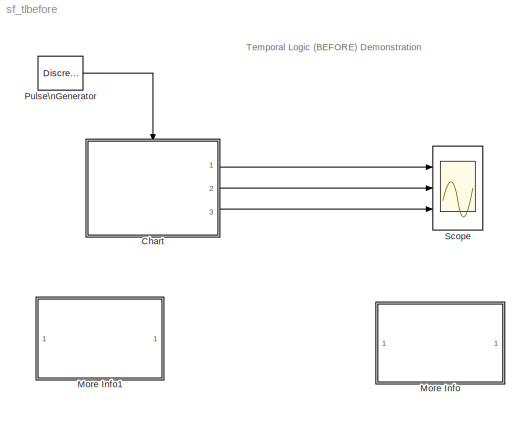
MODEL sf_tlbefore
KIND model
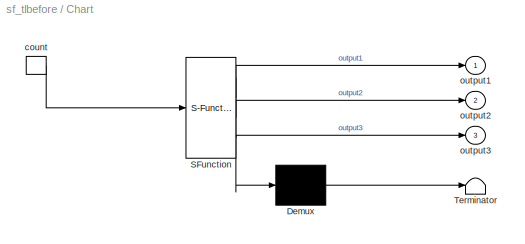
BLOCK [SubSystem] Chart
  MaskDescription = Stateflow diagram
  MaskDisplay = plot(sf('Private','sfblk','xIcon'),sf('Private','sfblk','yIcon'));text(0.5,0,sf('Private', 'sfblk', 'tIcon'),'HorizontalAl','Center','VerticalAl','Bottom');
  MaskIconFrame = off
  MaskIconOpaque = off
  MaskIconRotate = none
  MaskIconUnits = autoscale
  MaskSelfModifiable = on
  MaskType = Stateflow
  MinAlgLoopOccurrences = off
  Ports = [0, 3, 0, 1]
  PropExecContextAcrossSSBoundary = on
  RTWSystemCode = Auto
  TreatAsAtomicUnit = on
BLOCK [Demux] Chart/ Demux 
  Outputs = 1
  Ports = [1, 1]
BLOCK [S-Function] Chart/ SFunction 
  FunctionName = sf_sfun
  PortCounts = [1 4]
  Ports = [1, 4]
  Tag = Stateflow S-Function sf_tlbefore 1
BLOCK [Terminator] Chart/ Terminator 
BLOCK [TriggerPort] Chart/count
  Ports = [0, 1]
  ShowOutputPort = on
BLOCK [Outport] Chart/output1
  IconDisplay = Port number
BLOCK [Outport] Chart/output2
  IconDisplay = Port number
  Port = 2
BLOCK [Outport] Chart/output3
  IconDisplay = Port number
  Port = 3
BLOCK [SubSystem] More Info
  MaskDisplay = disp('Double click\\nhere for\\ninformation on\\nthis demonstration')
  MaskIconFrame = on
  MaskIconOpaque = on
  MaskIconRotate = none
  MaskIconUnits = autoscale
  MinAlgLoopOccurrences = off
  Ports = []
  PropExecContextAcrossSSBoundary = on
  RTWSystemCode = Auto
  TreatAsAtomicUnit = off
BLOCK [SubSystem] More Info1
  MaskDisplay = disp('Double click\\nhere for<path> Help')
  MaskIconFrame = on
  MaskIconOpaque = on
  MaskIconRotate = none
  MaskIconUnits = autoscale
  MinAlgLoopOccurrences = off
  OpenFcn = simcad(bdroot);
  Ports = []
  PropExecContextAcrossSSBoundary = on
  RTWSystemCode = Auto
  TreatAsAtomicUnit = off
BLOCK [DiscretePulseGenerator] Pulse\nGenerator
  Period = 1
  Ports = [0, 1]
  PulseType = Time based
  PulseWidth = 50
BLOCK [Scope] Scope
  DataFormat = StructureWithTime
  NumInputPorts = 3
  Ports = [3]
  TimeRange = 20
  YMax = 1.25~1.25~1
  YMin = 0~0~-1
ANNOTATION (root): Temporal Logic (BEFORE) Demonstration
ANNOTATION More Info: Temporal Logic using the BEFORE function
ANNOTATION More Info: The BEFORE function allows you to execute a transition or an action before a certain number\nof events occur. In this example, we illustrate the use of the BEFORE function for three different\nconditions with three different constraints. \n\nIn superstate One, two conditions need to be met for the transition out of A_state: signal_one has\nto be less than 5 before 10 events occur. Since both these...<+625ch>
LINE Chart/ Demux :1 -> Chart/ Terminator :1
LINE Chart/ SFunction :1 -> Chart/ Demux :1
LINE Chart/ SFunction :2 -> Chart/output1:1
LINE Chart/ SFunction :3 -> Chart/output2:1
LINE Chart/ SFunction :4 -> Chart/output3:1
LINE Chart/count:1 -> Chart/ SFunction :1
LINE Chart:1 -> Scope:1
LINE Chart:2 -> Scope:2
LINE Chart:3 -> Scope:3
LINE Pulse\nGenerator:1 -> Chart:trigger
CHART Chart states=6 transitions=7
  STATE_LABEL 'A_state\\non count:signal_one++;'
  STATE_LABEL 'B_state\\non count:signal_two++;'
  STATE_LABEL 'C_state\\non count:signal_three++;'
  STATE_LABEL 'One'
  STATE_LABEL 'Two'
  STATE_LABEL 'Three'
note: 1 file-system path scrubbed to <path> (not preserved elsewhere — flat text is the only slx artifact)
